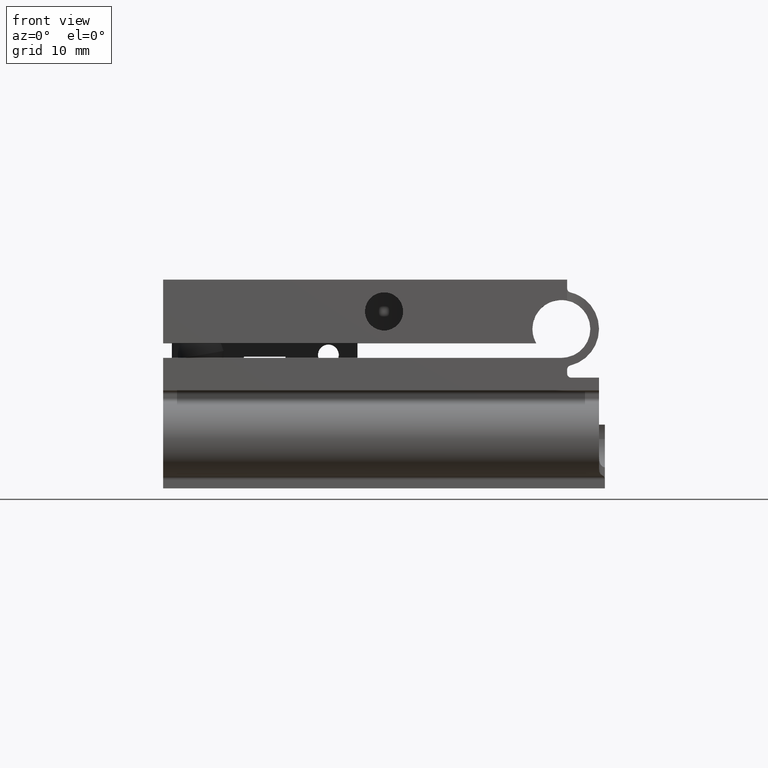
[diagram: clean part render]
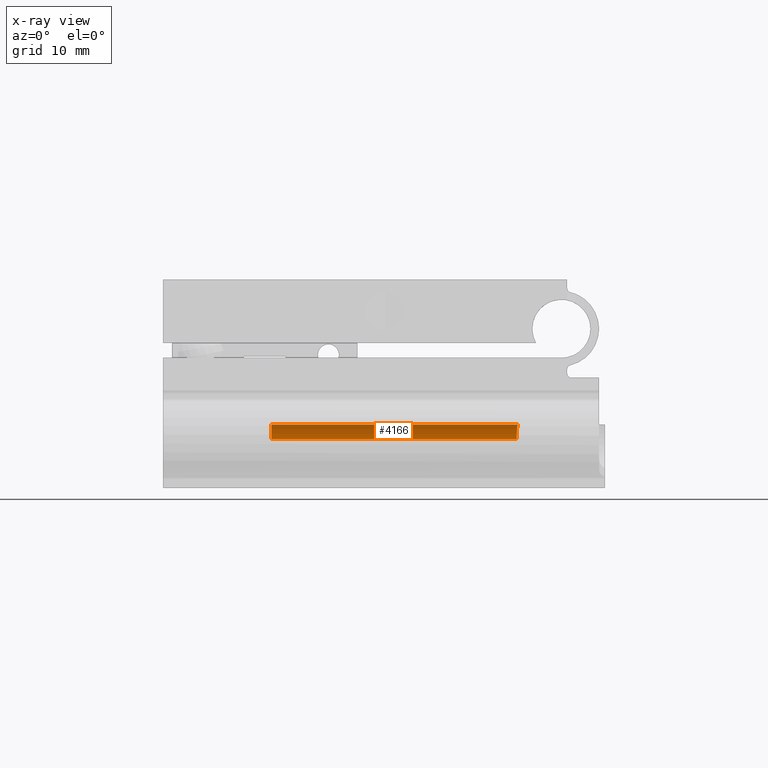
[diagram: x-ray — body ghosted, one internal face saturated and labeled with its STEP entity id]
A machine part, front view, then the same camera in x-ray: the body is ghosted and one INTERNAL B-rep face — a face not visible from any outside direction — is saturated and labeled: STEP entity #4166.
In plain terms, the highlighted cylindrical surface (edge-blend (fillet) strip) has radius 2.5 mm, axis along (1, 0, -0).
Its self-contained STEP definition (entity closure, byte-faithful):
#176 = CARTESIAN_POINT ( 'NONE',  ( -19.05000000000015703, -13.13493649053896739, -3.499999999999998668 ) ) ;
#542 = B_SPLINE_CURVE_WITH_KNOTS ( 'NONE', 3,
 ( #1641, #2386, #5692, #9025, #4144, #3149 ),
 .UNSPECIFIED., .F., .F.,
 ( 4, 2, 4 ),
 ( 5.485677294651095664E-18, 0.0006517680738043178526, 0.001303536147608631152 ),
 .UNSPECIFIED. ) ;
#827 = DIRECTION ( 'NONE',  ( 1.000000000000000000, 4.496403249731883989E-15, -2.403560570595272096E-31 ) ) ;
#851 = B_SPLINE_CURVE_WITH_KNOTS ( 'NONE', 3,
 ( #1502, #8079, #5547, #8829, #1449, #4753 ),
 .UNSPECIFIED., .F., .F.,
 ( 4, 2, 4 ),
 ( 0.007558376911395959900, 0.008214147610746218992, 0.008869918310096478950 ),
 .UNSPECIFIED. ) ;
#1040 = ORIENTED_EDGE ( 'NONE', *, *, #4255, .T. ) ;
#1144 = DIRECTION ( 'NONE',  ( 1.000000000000000000, 4.496403249731883989E-15, -2.403560570595272096E-31 ) ) ;
#1449 = CARTESIAN_POINT ( 'NONE',  ( 11.48771793149538212, -13.02610889409119110, -3.688494926312904543 ) ) ;
#1502 = CARTESIAN_POINT ( 'NONE',  ( 11.45400642056222473, -12.79999999999992610, -4.749999999999998224 ) ) ;
#1641 = CARTESIAN_POINT ( 'NONE',  ( -9.731695728332885764, -13.13493649053896917, -3.499999999999998668 ) ) ;
#2091 = VECTOR ( 'NONE', #8561, 1000.000000000000000 ) ;
#2322 = EDGE_CURVE ( 'NONE', #9480, #4894, #9206, .T. ) ;
#2386 = CARTESIAN_POINT ( 'NONE',  ( -9.715585743300144017, -13.02499092738342767, -3.690431301452172796 ) ) ;
#2640 = ORIENTED_EDGE ( 'NONE', *, *, #2322, .F. ) ;
#3149 = CARTESIAN_POINT ( 'NONE',  ( -9.701667129887086460, -12.80000000000002203, -4.749999999999998224 ) ) ;
#3979 = FACE_OUTER_BOUND ( 'NONE', #10302, .T. ) ;
#4144 = CARTESIAN_POINT ( 'NONE',  ( -9.701667129887088237, -12.80000000000002203, -4.532627630407302100 ) ) ;
#4166 = ADVANCED_FACE ( 'NONE', ( #3979 ), #8065, .F. ) ;
#4255 = EDGE_CURVE ( 'NONE', #9480, #7689, #542, .T. ) ;
#4659 = CARTESIAN_POINT ( 'NONE',  ( 11.52810826046180637, -13.13493649053882706, -3.499999999999998668 ) ) ;
#4753 = CARTESIAN_POINT ( 'NONE',  ( 11.52810826046180637, -13.13493649053882706, -3.499999999999998668 ) ) ;
#4781 = AXIS2_PLACEMENT_3D ( 'NONE', #6562, #827, #9711 ) ;
#4880 = VECTOR ( 'NONE', #1144, 1000.000000000000000 ) ;
#4894 = VERTEX_POINT ( 'NONE', #4659 ) ;
#5090 = CARTESIAN_POINT ( 'NONE',  ( -9.701667129887086460, -12.80000000000002203, -4.749999999999998224 ) ) ;
#5342 = CARTESIAN_POINT ( 'NONE',  ( -19.05000000000014637, -12.80000000000006288, -4.749999999999998224 ) ) ;
#5481 = EDGE_CURVE ( 'NONE', #10457, #4894, #851, .T. ) ;
#5547 = CARTESIAN_POINT ( 'NONE',  ( 11.45532472994656814, -12.82882350125139581, -4.312583512091832993 ) ) ;
#5692 = CARTESIAN_POINT ( 'NONE',  ( -9.709239194543837215, -12.94199486141326005, -3.891257570025196344 ) ) ;
#6562 = CARTESIAN_POINT ( 'NONE',  ( -19.05000000000015703, -15.30000000000006288, -4.749999999999998224 ) ) ;
#7063 = CARTESIAN_POINT ( 'NONE',  ( -9.731695728332885764, -13.13493649053896917, -3.499999999999998668 ) ) ;
#7595 = ORIENTED_EDGE ( 'NONE', *, *, #5481, .T. ) ;
#7689 = VERTEX_POINT ( 'NONE', #5090 ) ;
#7823 = LINE ( 'NONE', #5342, #4880 ) ;
#8065 = CYLINDRICAL_SURFACE ( 'NONE', #4781, 2.500000000000000444 ) ;
#8079 = CARTESIAN_POINT ( 'NONE',  ( 11.45400642056222473, -12.79999999999992433, -4.531724102761595319 ) ) ;
#8561 = DIRECTION ( 'NONE',  ( 1.000000000000000000, 4.496403249731883989E-15, -2.403560570595272096E-31 ) ) ;
#8829 = CARTESIAN_POINT ( 'NONE',  ( 11.47242724357234067, -12.94264614160097437, -3.889227522423867711 ) ) ;
#9025 = CARTESIAN_POINT ( 'NONE',  ( -9.702233361119926514, -12.82886771209603261, -4.312813529121727996 ) ) ;
#9186 = EDGE_CURVE ( 'NONE', #7689, #10457, #7823, .T. ) ;
#9206 = LINE ( 'NONE', #176, #2091 ) ;
#9480 = VERTEX_POINT ( 'NONE', #7063 ) ;
#9711 = DIRECTION ( 'NONE',  ( 4.163336342344336238E-15, 1.000000000000000000, 0.0000000000000000000 ) ) ;
#10302 = EDGE_LOOP ( 'NONE', ( #1040, #10459, #7595, #2640 ) ) ;
#10363 = CARTESIAN_POINT ( 'NONE',  ( 11.45400642056222473, -12.79999999999992610, -4.749999999999998224 ) ) ;
#10457 = VERTEX_POINT ( 'NONE', #10363 ) ;
#10459 = ORIENTED_EDGE ( 'NONE', *, *, #9186, .T. ) ;